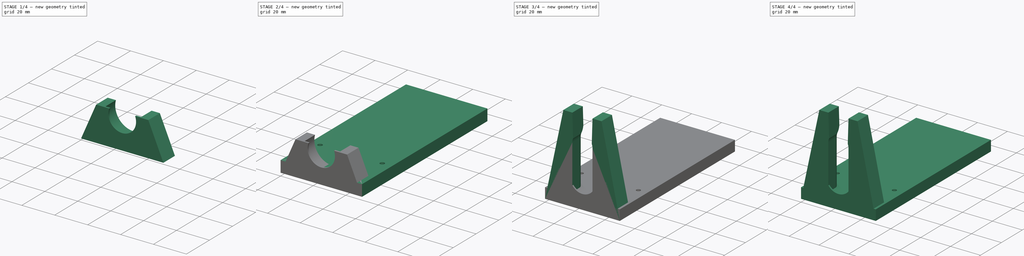
[diagram: build sequence overview — one tinted view per stage of 4, left to right]
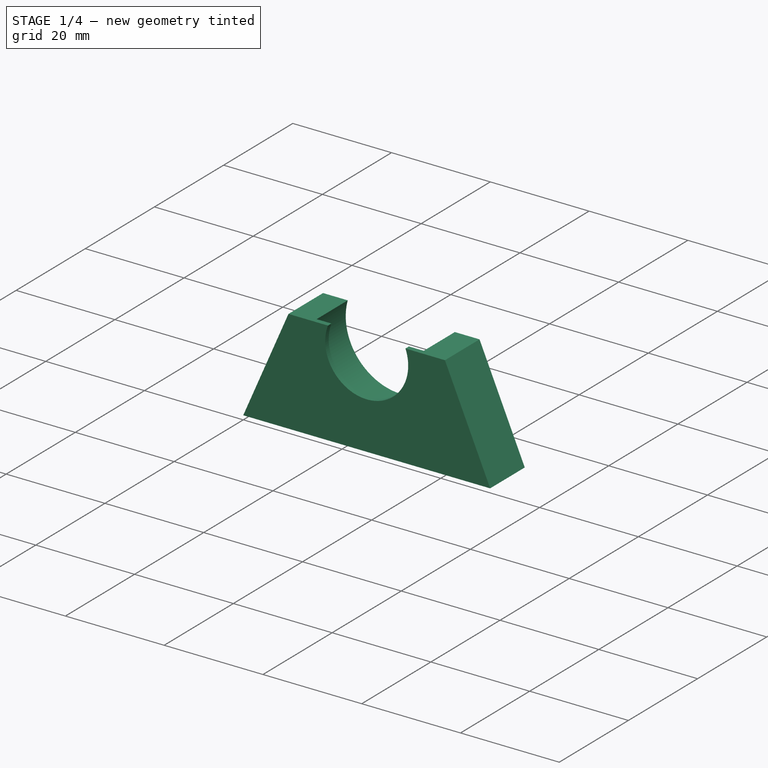
[diagram: stage 1 of 4 — iso view after this stage's code; geometry added in this stage tinted green]
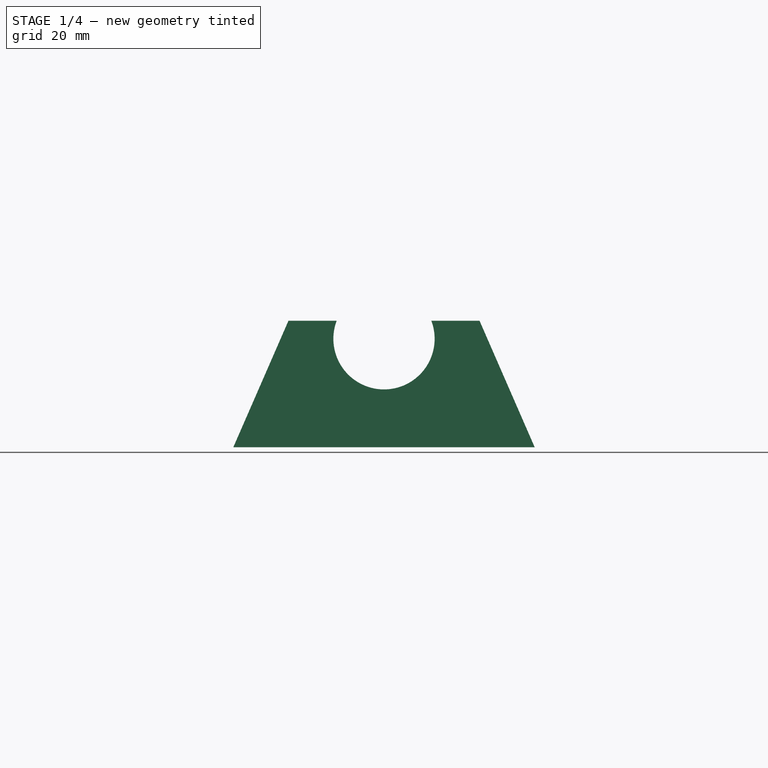
[diagram: stage 1 of 4 — front view after this stage's code; geometry added in this stage tinted green]
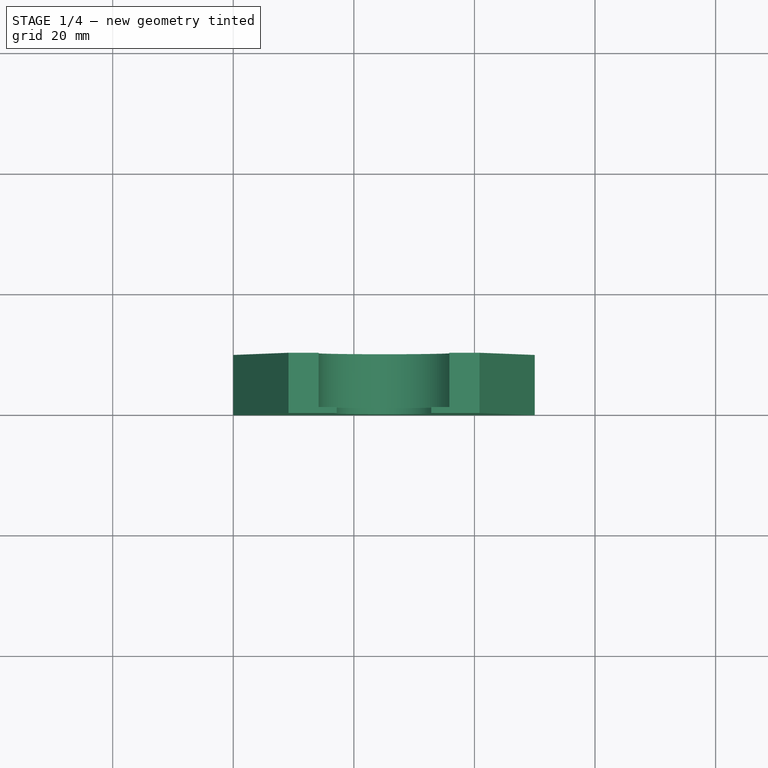
[diagram: stage 1 of 4 — top view after this stage's code; geometry added in this stage tinted green]
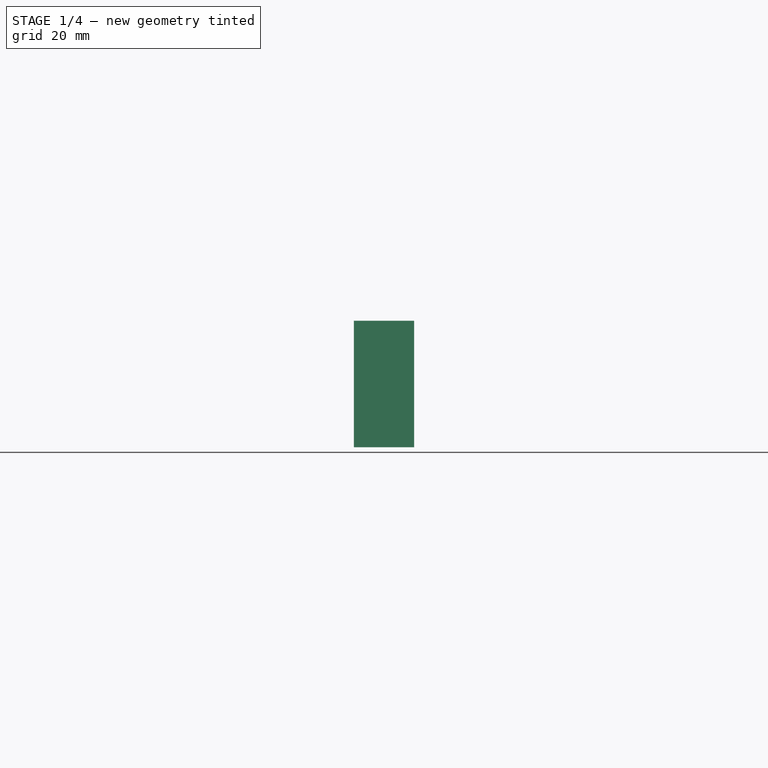
[diagram: stage 1 of 4 — right view after this stage's code; geometry added in this stage tinted green]
FCSTD DOCUMENT  (FreeCAD 0.19R23463 (Git))
Label: adaptador_gilson_v0.2
License: All rights reserved
LicenseURL: http://en.wikipedia.org/wiki/All_rights_reserved
objects: Sketcher::SketchObject×9, PartDesign::Pad×7, PartDesign::Body×4, PartDesign::Fillet×1, Spreadsheet::Sheet×1, PartDesign::Pocket×1
note: 31 computed .brp shape members not serialized (recipe doc carries the construction recipe); baked Part::Feature solids carry a one-line shape summary decoded from their .brp

FEATURE [Sketcher::SketchObject] Sketch001
  MapMode = 5
  Placement = pos=(0,0,0) rot=(1,0,0;1.5708rad)
  Support = -> [XZ_Plane001]
  expr: Constraints[0] = Spreadsheet.B2
  expr: Constraints[13] = Spreadsheet.D3
  expr: Constraints[15] = Spreadsheet.B8 / 2
  expr: Constraints[14] = Spreadsheet.B10
  expr: Constraints[17] = Spreadsheet.B8
  sketch-geometry (6):
    g0: ArcOfCircle CenterX=25 CenterY=18 CenterZ=0 NormalX=0 NormalY=0 NormalZ=1 AngleXU=0 Radius=8.4 StartAngle=2.77639 EndAngle=6.64839
    g1: LineSegment StartX=17.154 StartY=21 StartZ=0 EndX=13.154 EndY=21 EndZ=0
    g2: LineSegment StartX=13.154 StartY=21 StartZ=0 EndX=0 EndY=0 EndZ=0
    g3: LineSegment StartX=0 StartY=0 StartZ=0 EndX=50 EndY=0 EndZ=0
    g4: LineSegment StartX=50 StartY=0 StartZ=0 EndX=36.846 EndY=21 EndZ=0
    g5: LineSegment StartX=36.846 StartY=21 StartZ=0 EndX=32.846 EndY=21 EndZ=0
  constraints (18):
    c: Diameter(g0) = 16.8
    c: Coincident(g0,g1)
    c: Coincident(g1,g2)
    c: Coincident(g2,g3)
    c: PointOnObject(g3,g-1)
    c: Coincident(g3,g4)
    c: Coincident(g4,g5)
    c: Coincident(g5,g0)
    c: Horizontal(g5)
    c: Horizontal(g1)
    c: Equal(g1,g5)
    c: Coincident(g2,g-1)
    c: Equal(g2,g4)
    c: DistanceY(g0,g0) = 3
    c: DistanceY(g3,g0) = 18
    c: DistanceX(g2,g0) = 25
    c: DistanceX(g5,g5) = 4
    c: DistanceX(g2,g3) = 50
FEATURE [PartDesign::Pad] Pad001
  AllowMultiFace = false
  Direction = (1,1,1)
  Length = 1
  Length2 = 100
  Placement = pos=(0,0,0) rot=(1,0,0;1.5708rad)
  Profile = -> Sketch001
  Reversed = true
  Type = 0
FEATURE [PartDesign::Body] Body006  label="Body_base_v2_holes"
  Group = -> [Sketch010,Pad011]
  Origin = -> Origin006
  Tip = -> Pad011
FEATURE [Spreadsheet::Sheet] Spreadsheet
  cells = A2=diametro chico; B2==16.8mm; A3=profundidad hendidura para calzar; B3==2mm + B2 / 2; C3=profundidad extra; D3=3; A5=diametro grande; B5==22mm; A6=tol; B6==B5 + 0.5mm; A8=ancho base; B8==50mm; A10=distancia centro-base; B10==18mm
FEATURE [Sketcher::SketchObject] Sketch011
  MapMode = 5
  Placement = pos=(0,0,0) rot=(1,0,0;1.5708rad)
  Support = -> [XZ_Plane001]
  expr: Constraints[0] = Spreadsheet.B6
  expr: Constraints[13] = Spreadsheet.B8
  expr: Constraints[20] = Spreadsheet.B8 / 2
  expr: Constraints[19] = Spreadsheet.B10
  expr: .Constraints.extra_para_agarrar = Spreadsheet.D3
  sketch-geometry (8):
    g0: ArcOfCircle CenterX=25 CenterY=18 CenterZ=0 NormalX=0 NormalY=0 NormalZ=1 AngleXU=0 Radius=11.25 StartAngle=2.87166 EndAngle=6.55312
    g1: LineSegment StartX=14.1574 StartY=21 StartZ=0 EndX=9.15738 EndY=21 EndZ=0
    g2: LineSegment StartX=9.15738 StartY=21 StartZ=0 EndX=0 EndY=0 EndZ=0
    g3: LineSegment StartX=0 StartY=0 StartZ=0 EndX=50 EndY=0 EndZ=0
    g4: LineSegment StartX=50 StartY=0 StartZ=0 EndX=40.8426 EndY=21 EndZ=0
    g5: LineSegment StartX=40.8426 StartY=21 StartZ=0 EndX=35.8426 EndY=21 EndZ=0
    g6: LineSegment StartX=0 StartY=0 StartZ=0 EndX=50 EndY=0 EndZ=0
    g7: GeomPoint X=25 Y=0 Z=0
  constraints (21):
    c: Diameter(g0) = 22.5
    c: Coincident(g0,g1)
    c: Coincident(g1,g2)
    c: Coincident(g2,g3)
    c: PointOnObject(g3,g-1)
    c: Coincident(g3,g4)
    c: Coincident(g4,g5)
    c: Coincident(g5,g0)
    c: Horizontal(g5)
    c: Horizontal(g1)
    c: Equal(g1,g5)
    c: DistanceX(g5,g5) = 5
    c: Coincident(g6,g-1)
    c: DistanceX(g6,g6) = 50
    c: Symmetric(g-1,g6,g7)
    c: Symmetric(g2,g3,g7)
    c: Coincident(g2,g-1)
    c: Equal(g2,g4)
    c: DistanceY(g0,g0) = 3  'extra_para_agarrar'
    c: DistanceY(g7,g0) = 18
    c: DistanceX(g2,g0) = 25
FEATURE [PartDesign::Pad] Pad012
  AllowMultiFace = false
  BaseFeature = -> Pad001
  Direction = (1,1,1)
  Length = 10
  Length2 = 100
  Placement = pos=(0,0,0) rot=(1,0,0;1.5708rad)
  Profile = -> Sketch011
  Reversed = true
  Type = 0
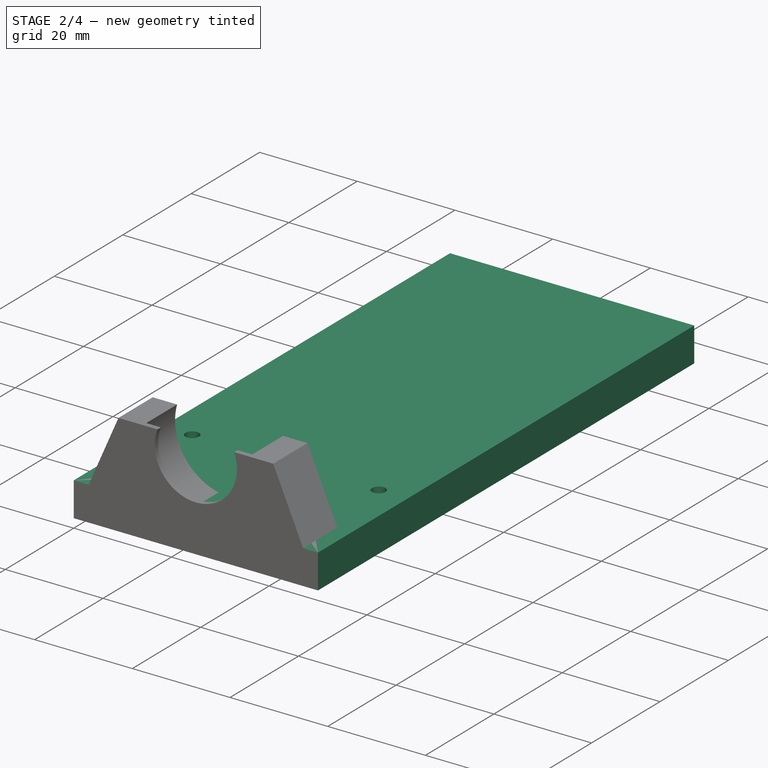
[diagram: stage 2 of 4 — iso view after this stage's code; geometry added in this stage tinted green]
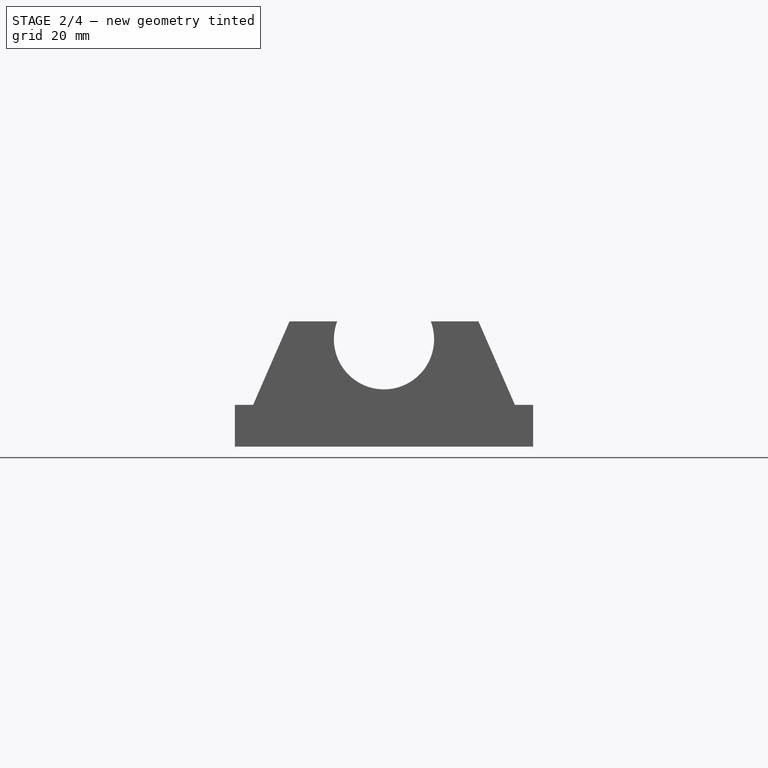
[diagram: stage 2 of 4 — front view after this stage's code; geometry added in this stage tinted green]
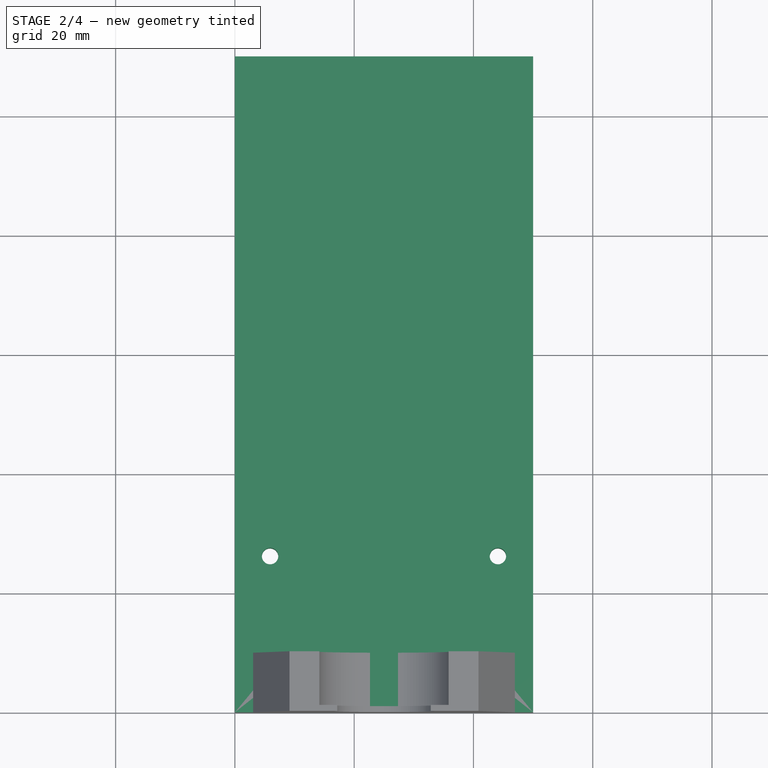
[diagram: stage 2 of 4 — top view after this stage's code; geometry added in this stage tinted green]
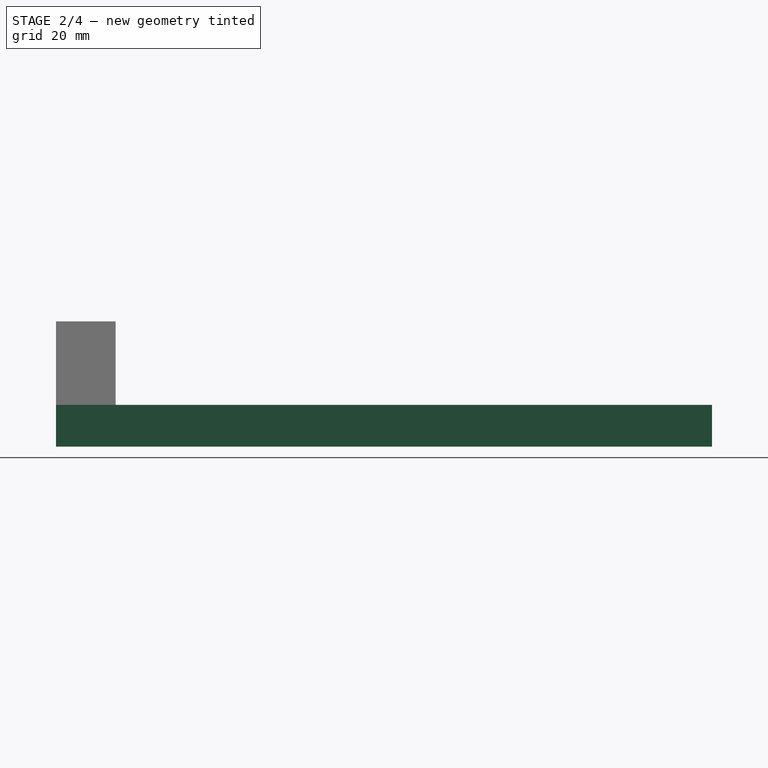
[diagram: stage 2 of 4 — right view after this stage's code; geometry added in this stage tinted green]
FEATURE [PartDesign::Body] Body005  label="base_gilson_top"
  Group = -> [Sketch006,Pad006,Fillet001,Sketch009,Pad010]
  Origin = -> Origin005
  Tip = -> Pad010
FEATURE [Sketcher::SketchObject] Sketch010
  MapMode = 5
  Support = -> [XY_Plane006]
  sketch-geometry (35):
    g0: LineSegment StartX=255.455 StartY=130.752 StartZ=0 EndX=305.455 EndY=130.752 EndZ=0
    g1: LineSegment StartX=305.455 StartY=130.752 StartZ=0 EndX=305.455 EndY=99.5515 EndZ=0
    g2: LineSegment StartX=305.455 StartY=99.5515 StartZ=0 EndX=255.455 EndY=99.5515 EndZ=0
    g3: LineSegment StartX=255.455 StartY=99.5515 StartZ=0 EndX=255.455 EndY=130.752 EndZ=0
    g4: Circle CenterX=299.555 CenterY=104.552 CenterZ=0 NormalX=0 NormalY=0 NormalZ=1 AngleXU=0 Radius=1.375
    g5: Circle CenterX=261.355 CenterY=104.552 CenterZ=0 NormalX=0 NormalY=0 NormalZ=1 AngleXU=0 Radius=1.375
    g6: Circle CenterX=261.355 CenterY=125.752 CenterZ=0 NormalX=0 NormalY=0 NormalZ=1 AngleXU=0 Radius=1.375
    g7: Circle CenterX=299.555 CenterY=125.752 CenterZ=0 NormalX=0 NormalY=0 NormalZ=1 AngleXU=0 Radius=1.375
    g8: LineSegment StartX=261.355 StartY=125.752 StartZ=0 EndX=299.555 EndY=125.752 EndZ=0
    g9: LineSegment StartX=299.555 StartY=125.752 StartZ=0 EndX=299.555 EndY=104.552 EndZ=0
    g10: LineSegment StartX=299.555 StartY=104.552 StartZ=0 EndX=261.355 EndY=104.552 EndZ=0
    g11: LineSegment StartX=261.355 StartY=104.552 StartZ=0 EndX=261.355 EndY=125.752 EndZ=0
    g12: LineSegment StartX=255.455 StartY=99.5515 StartZ=0 EndX=299.555 EndY=104.552 EndZ=0
    g13: LineSegment StartX=305.455 StartY=99.5515 StartZ=0 EndX=261.355 EndY=104.552 EndZ=0
    g14: LineSegment StartX=93.0794 StartY=104.5 StartZ=0 EndX=97.1711 EndY=52 EndZ=0
    g15: LineSegment StartX=97.1711 StartY=52 StartZ=0 EndX=101.263 EndY=104.5 EndZ=0
    g16: LineSegment StartX=101.263 StartY=104.5 StartZ=0 EndX=93.0794 EndY=104.5 EndZ=0
    g17: LineSegment StartX=228.766 StartY=219.5 StartZ=0 EndX=190.566 EndY=219.5 EndZ=0
    g18: LineSegment StartX=190.566 StartY=219.5 StartZ=0 EndX=190.566 EndY=294.5 EndZ=0
    g19: LineSegment StartX=190.566 StartY=294.5 StartZ=0 EndX=228.766 EndY=294.5 EndZ=0
    g20: LineSegment StartX=228.766 StartY=294.5 StartZ=0 EndX=228.766 EndY=219.5 EndZ=0
    g21: LineSegment StartX=207.166 StartY=99.5 StartZ=0 EndX=212.166 EndY=99.5 EndZ=0
    g22: LineSegment StartX=212.166 StartY=99.5 StartZ=0 EndX=212.166 EndY=219.5 EndZ=0
    g23: LineSegment StartX=212.166 StartY=219.5 StartZ=0 EndX=207.166 EndY=219.5 EndZ=0
    g24: LineSegment StartX=207.166 StartY=219.5 StartZ=0 EndX=207.166 EndY=99.5 EndZ=0
    g25: LineSegment StartX=190.566 StartY=219.5 StartZ=0 EndX=207.166 EndY=99.5 EndZ=0
    g26: LineSegment StartX=212.166 StartY=99.5 StartZ=0 EndX=228.766 EndY=219.5 EndZ=0
    g27: LineSegment StartX=72.3393 StartY=42 StartZ=0 EndX=77.3393 EndY=2 EndZ=0
    g28: LineSegment StartX=77.3393 StartY=2 StartZ=0 EndX=82.3393 EndY=42 EndZ=0
    g29: LineSegment StartX=82.3393 StartY=42 StartZ=0 EndX=72.3393 EndY=42 EndZ=0
    g30: LineSegment StartX=325.681 StartY=75 StartZ=0 EndX=195.364 EndY=75 EndZ=0
    g31: LineSegment StartX=195.364 StartY=75 StartZ=0 EndX=195.364 EndY=153.36 EndZ=0
    g32: LineSegment StartX=195.364 StartY=153.36 StartZ=0 EndX=325.681 EndY=153.36 EndZ=0
    g33: LineSegment StartX=325.681 StartY=153.36 StartZ=0 EndX=325.681 EndY=75 EndZ=0
    g34: GeomPoint X=0 Y=0 Z=0
  constraints (86):
    c: Coincident(g0,g1)
    c: Coincident(g1,g2)
    c: Coincident(g3,g0)
    c: Horizontal(g0)
    c: Horizontal(g2)
    c: Vertical(g1)
    c: Vertical(g3)
    c: DistanceX(g0,g0) = 50
    c: Equal(g6,g5)
    c: Equal(g5,g4)
    c: Equal(g4,g7)
    c: DistanceX(g6,g7) = 38.2
    c: DistanceY(g5,g6) = 21.2
    c: Coincident(g8,g9)
    c: Coincident(g9,g10)
    c: Coincident(g10,g11)
    c: Coincident(g11,g8)
    c: Horizontal(g8)
    c: Horizontal(g10)
    c: Vertical(g9)
    c: Vertical(g11)
    c: Coincident(g8,g6)
    c: Coincident(g9,g4)
    c: Coincident(g5,g10)
    c: Coincident(g7,g8)
    c: DistanceY(g2,g5) = 5
    c: Coincident(g12,g2)
    c: Coincident(g12,g4)
    c: Coincident(g13,g1)
    c: Coincident(g13,g5)
    c: Equal(g12,g13)
    c: Diameter(g7) = 2.75
    c: Coincident(g14,g15)
    c: Coincident(g15,g16)
    c: Coincident(g16,g14)
    c: Horizontal(g16)
    c: DistanceY(g14,g15) = 52.5
    c: Equal(g14,g15)
    c: Coincident(g17,g18)
    c: Coincident(g18,g19)
    c: Coincident(g19,g20)
    c: Coincident(g20,g17)
    c: Horizontal(g17)
    c: Horizontal(g19)
    c: Vertical(g18)
    c: Vertical(g20)
    c: DistanceX(g19,g19) = 38.2
    c: Coincident(g21,g22)
    c: Coincident(g22,g23)
    c: Coincident(g23,g24)
    c: Coincident(g24,g21)
    c: Horizontal(g21)
    c: Horizontal(g23)
    c: Vertical(g22)
    c: Vertical(g24)
    c: PointOnObject(g22,g17)
    c: Coincident(g25,g17)
    c: Coincident(g25,g21)
    c: Coincident(g26,g21)
    c: Coincident(g26,g17)
    c: Equal(g26,g25)
    c: DistanceY(g22,g22) = 120
    c: DistanceX(g21,g21) = 5
    c: DistanceY(g21,g15) = 5
    c: Coincident(g27,g28)
    c: Coincident(g28,g29)
    c: Coincident(g29,g27)
    c: Horizontal(g29)
    c: DistanceY(g27,g28) = 40
    c: Equal(g27,g28)
    c: DistanceY(g34,g27) = 2
    c: DistanceX(g29,g29) = 10
    c: DistanceY(g28,g14) = 10
    c: Coincident(g3,g2)
    c: DistanceY(g6,g0) = 5
    c: Coincident(g30,g31)
    c: Coincident(g31,g32)
    c: Coincident(g32,g33)
    c: Coincident(g33,g30)
    c: Horizontal(g30)
    c: Horizontal(g32)
    c: Vertical(g31)
    c: Vertical(g33)
    c: DistanceY(g34,g30) = 75
    c: DistanceY(g20,g20) = 75
    c: Coincident(g34,g-1)
FEATURE [PartDesign::Pad] Pad011
  AllowMultiFace = false
  Direction = (1,1,1)
  Length = 7
  Length2 = 100
  Profile = -> Sketch010
  Type = 0
FEATURE [Sketcher::SketchObject] Sketch012
  MapMode = 5
  Support = -> [XY_Plane001]
  expr: Constraints[0] = Spreadsheet.B8 / 2
  sketch-geometry (1):
    g0: Circle CenterX=25 CenterY=5 CenterZ=0 NormalX=0 NormalY=0 NormalZ=1 AngleXU=0 Radius=1.475
  constraints (3):
    c: DistanceX(g-1,g0) = 25
    c: DistanceY(g-1,g0) = 5
    c: Diameter(g0) = 2.95
FEATURE [PartDesign::Pocket] Pocket
  AllowMultiFace = false
  BaseFeature = -> Pad012
  Length = 50
  Length2 = 100
  Placement = pos=(0,0,0) rot=(1,0,0;1.5708rad)
  Profile = -> Sketch012
  Reversed = true
  Type = 0
FEATURE [PartDesign::Body] Body001  label="base_gilson_inferior"
  Group = -> [Sketch001,Pad001,Sketch007,Sketch011,Pad012,Sketch012,Pocket]
  Origin = -> Origin001
  Tip = -> Pocket
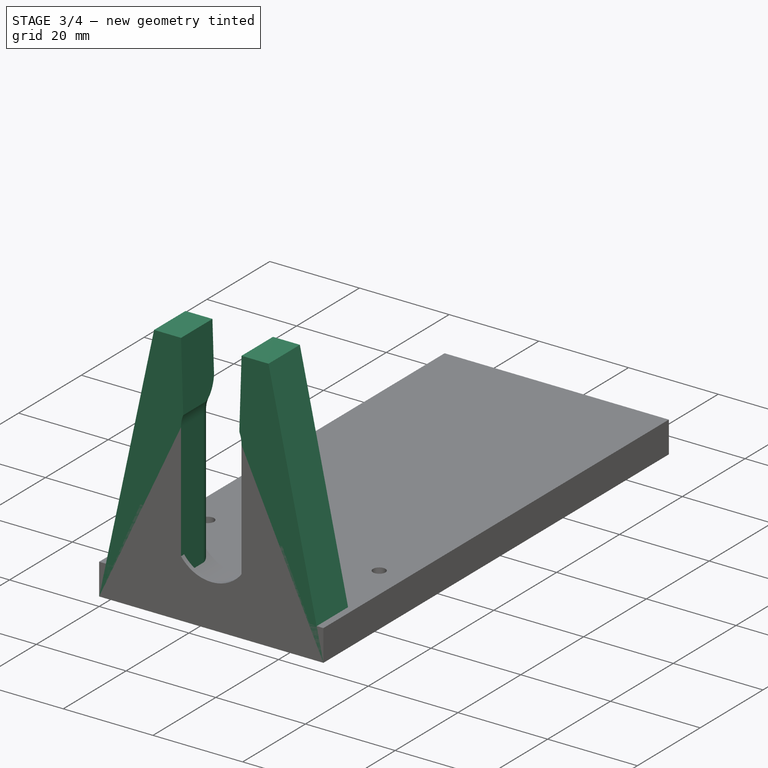
[diagram: stage 3 of 4 — iso view after this stage's code; geometry added in this stage tinted green]
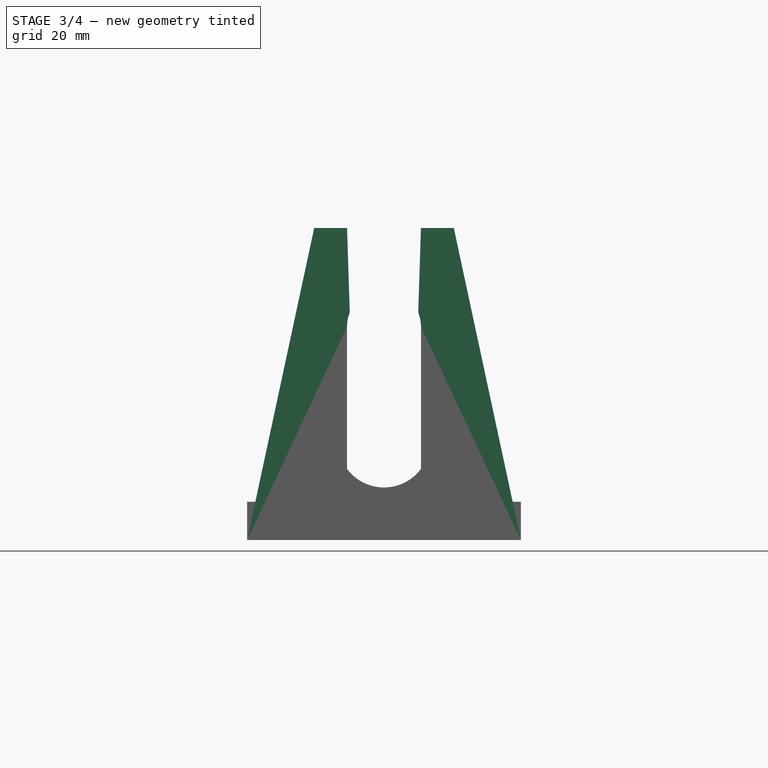
[diagram: stage 3 of 4 — front view after this stage's code; geometry added in this stage tinted green]
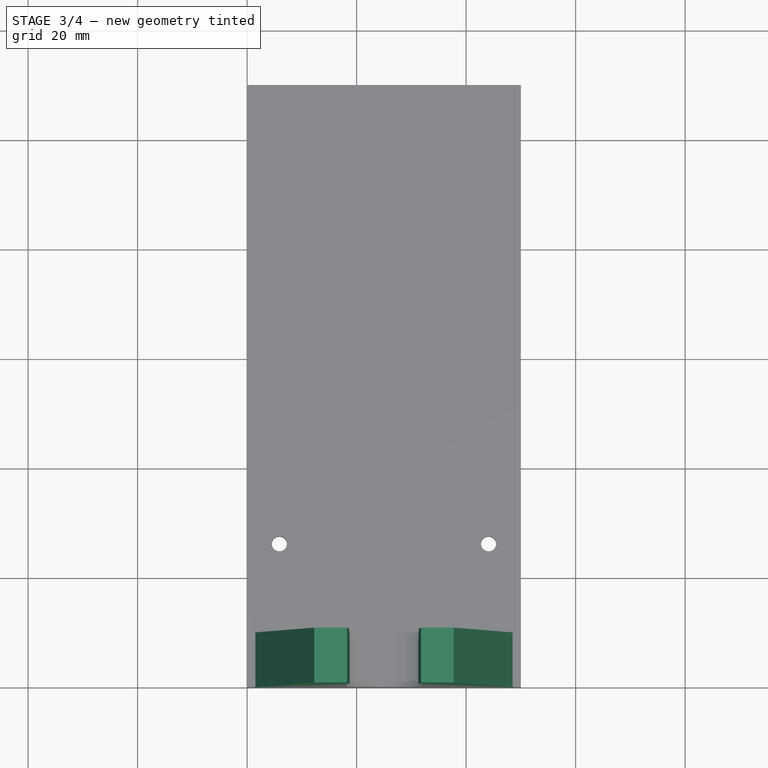
[diagram: stage 3 of 4 — top view after this stage's code; geometry added in this stage tinted green]
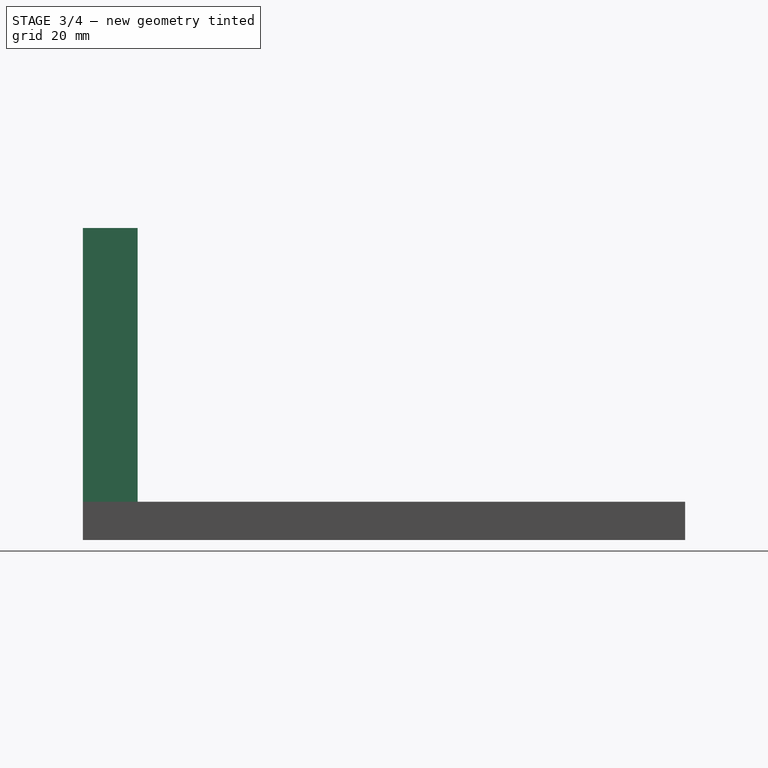
[diagram: stage 3 of 4 — right view after this stage's code; geometry added in this stage tinted green]
FEATURE [PartDesign::Body] Body  label="Body_base"
  Group = -> [Sketch,Pad,Sketch005,Pad005]
  Origin = -> Origin
  Tip = -> Pad005
FEATURE [Sketcher::SketchObject] Sketch006
  MapMode = 5
  Placement = pos=(0,0,0) rot=(1,0,0;1.5708rad)
  Support = -> [XZ_Plane005]
  expr: Constraints[18] = 13.4 + 0.1
  expr: Constraints[19] = 10 + 40
  sketch-geometry (27):
    g0: LineSegment StartX=18.25 StartY=57 StartZ=0 EndX=12.25 EndY=57 EndZ=0
    g1: LineSegment StartX=12.25 StartY=57 StartZ=0 EndX=0 EndY=0 EndZ=0
    g2: LineSegment StartX=0 StartY=0 StartZ=0 EndX=50 EndY=0 EndZ=0
    g3: LineSegment StartX=50 StartY=0 StartZ=0 EndX=37.75 EndY=57 EndZ=0
    g4: LineSegment StartX=37.75 StartY=57 StartZ=0 EndX=31.75 EndY=57 EndZ=0
    g5: LineSegment StartX=0 StartY=0 StartZ=0 EndX=50 EndY=0 EndZ=0
    g6: GeomPoint X=25 Y=0 Z=0
    g7: LineSegment StartX=18.25 StartY=7 StartZ=0 EndX=31.75 EndY=7 EndZ=0
    g8: GeomPoint X=18.25 Y=39 Z=0
    g9: LineSegment StartX=18.25 StartY=7 StartZ=0 EndX=18.25 EndY=39 EndZ=0
    g10: LineSegment StartX=18.25 StartY=57 StartZ=0 EndX=18.25 EndY=39 EndZ=0
    g11: ArcOfCircle CenterX=25 CenterY=39 CenterZ=0 NormalX=0 NormalY=0 NormalZ=1 AngleXU=0 Radius=6.75 StartAngle=2.75428 EndAngle=3.14159
    g12: ArcOfCircle CenterX=25 CenterY=39 CenterZ=0 NormalX=0 NormalY=0 NormalZ=1 AngleXU=0 Radius=6.75 StartAngle=7e-16 EndAngle=0.387317
    g13: LineSegment StartX=18.25 StartY=39 StartZ=0 EndX=31.75 EndY=39 EndZ=0
    g14: LineSegment StartX=18.75 StartY=41.5495 StartZ=0 EndX=18.25 EndY=57 EndZ=0
    g15: LineSegment StartX=31.25 StartY=41.5495 StartZ=0 EndX=31.75 EndY=57 EndZ=0
    g16: LineSegment StartX=31.75 StartY=7 StartZ=0 EndX=31.75 EndY=39 EndZ=0
    g17: LineSegment StartX=31.75 StartY=39 StartZ=0 EndX=31.75 EndY=57 EndZ=0
    g18: LineSegment StartX=18.2499 StartY=8.5 StartZ=0 EndX=31.7499 EndY=8.5 EndZ=0
    g19: GeomPoint X=25 Y=7 Z=0
    g20: ArcOfCircle CenterX=24.9999 CenterY=22.9375 CenterZ=0 NormalX=0 NormalY=0 NormalZ=1 AngleXU=0 Radius=15.9375 StartAngle=4.27505 EndAngle=5.14973
    g21: LineSegment StartX=18.2499 StartY=7 StartZ=0 EndX=31.7499 EndY=7 EndZ=0
    g22: GeomPoint X=24.9999 Y=8.5 Z=0
    g23: LineSegment StartX=18.2499 StartY=8.5 StartZ=0 EndX=18.2499 EndY=7 EndZ=0
    g24: GeomPoint X=25 Y=7 Z=0
    g25: LineSegment StartX=18.25 StartY=39 StartZ=0 EndX=18.2499 EndY=8.5 EndZ=0
    g26: LineSegment StartX=31.7499 StartY=8.5 StartZ=0 EndX=31.75 EndY=39 EndZ=0
  constraints (65):
    c: DistanceY(g0,g4) = 0
    c: Coincident(g0,g1)
    c: Coincident(g1,g2)
    c: PointOnObject(g2,g-1)
    c: Coincident(g2,g3)
    c: Coincident(g3,g4)
    c: Horizontal(g4)
    c: Horizontal(g0)
    c: Equal(g0,g4)
    c: DistanceX(g4,g4) = 6
    c: Coincident(g5,g-1)
    c: DistanceX(g5,g5) = 50
    c: Symmetric(g-1,g5,g6)
    c: Symmetric(g1,g2,g6)
    c: Coincident(g1,g-1)
    c: Equal(g1,g3)
    c: Horizontal(g7)
    c: DistanceY(g2,g7) = 7
    c: DistanceX(g7,g7) = 13.5
    c: DistanceY(g7,g4) = 50
    c: DistanceY(g7,g8) = 32
    c: Coincident(g9,g7)
    c: Coincident(g9,g8)
    c: Vertical(g9)
    c: Coincident(g10,g0)
    c: Coincident(g10,g8)
    c: Vertical(g10)
    c: Coincident(g11,g8)
    c: DistanceX(g8,g11) = 0.5
    c: Coincident(g12,g11)
    c: DistanceX(g12,g12) = 0.5
    c: Symmetric(g8,g12,g11)
    c: Coincident(g13,g8)
    c: Horizontal(g13)
    c: Coincident(g12,g13)
    c: Coincident(g14,g11)
    c: Coincident(g14,g0)
    c: Coincident(g15,g12)
    c: Coincident(g15,g4)
    c: Coincident(g16,g7)
    c: Coincident(g16,g12)
    c: Vertical(g16)
    c: Coincident(g17,g12)
    c: Coincident(g17,g4)
    c: Vertical(g17)
    c: Horizontal(g18)
    c: DistanceX(g18,g18) = 13.5
    c: Symmetric(g7,g7,g19)
    c: Coincident(g20,g18)
    c: Coincident(g20,g18)
    c: Horizontal(g21)
    c: Equal(g21,g18)
    c: Tangent(g21,g20)
    c: Symmetric(g20,g20,g22)
    c: DistanceY(g21,g20) = 1.5
    c: Coincident(g23,g20)
    c: Coincident(g23,g21)
    c: Vertical(g23)
    c: PointOnObject(g24,g21)
    c: PointOnObject(g24,g20)
    c: Coincident(g24,g19)
    c: Coincident(g25,g8)
    c: Coincident(g25,g20)
    c: Coincident(g26,g20)
    c: Coincident(g26,g12)
FEATURE [PartDesign::Pad] Pad006
  AllowMultiFace = false
  Direction = (1,1,1)
  Length = 10
  Length2 = 100
  Placement = pos=(0,0,0) rot=(1,0,0;1.5708rad)
  Profile = -> Sketch006
  Reversed = true
  Type = 0
FEATURE [PartDesign::Fillet] Fillet001
  Base = -> Pad006 [Edge28,Edge34]
  BaseFeature = -> Pad006
  Placement = pos=(0,0,0) rot=(1,0,0;1.5708rad)
  Radius = 3
  SupportTransform = false
FEATURE [Sketcher::SketchObject] Sketch007
  ExternalGeometry = -> [Sketch001]
  MapMode = 5
  Placement = pos=(0,0,0) rot=(1,0,0;1.5708rad)
  Support = -> [XZ_Plane001]
  sketch-geometry (9):
    g0: LineSegment StartX=11 StartY=-4 StartZ=0 EndX=11 EndY=4.33291 EndZ=0
    g1: LineSegment StartX=11 StartY=4.33291 StartZ=0 EndX=39 EndY=4.33291 EndZ=0
    g2: LineSegment StartX=39 StartY=4.33291 StartZ=0 EndX=39 EndY=-4 EndZ=0
    g3: LineSegment StartX=39 StartY=-4 StartZ=0 EndX=35 EndY=-4 EndZ=0
    g4: LineSegment StartX=35 StartY=-4 StartZ=0 EndX=35 EndY=0 EndZ=0
    g5: LineSegment StartX=35 StartY=0 StartZ=0 EndX=15 EndY=0 EndZ=0
    g6: LineSegment StartX=15 StartY=0 StartZ=0 EndX=15 EndY=-4 EndZ=0
    g7: LineSegment StartX=15 StartY=-4 StartZ=0 EndX=11 EndY=-4 EndZ=0
    g8: GeomPoint X=25 Y=0 Z=0
  constraints (23):
    c: Vertical(g0)
    c: Coincident(g0,g1)
    c: Horizontal(g1)
    c: Coincident(g1,g2)
    c: Vertical(g2)
    c: Coincident(g2,g3)
    c: Horizontal(g3)
    c: Coincident(g3,g4)
    c: Vertical(g4)
    c: Coincident(g4,g5)
    c: Horizontal(g5)
    c: Coincident(g5,g6)
    c: Vertical(g6)
    c: Coincident(g6,g7)
    c: Coincident(g7,g0)
    c: Horizontal(g7)
    c: Equal(g7,g3)
    c: DistanceX(g7,g7) = 4
    c: Symmetric(g-1,g-3,g8)
    c: Symmetric(g4,g5,g8)
    c: DistanceX(g5,g5) = 20
    c: Equal(g7,g6)
    c: Equal(g6,g4)
FEATURE [Sketcher::SketchObject] Sketch009
  ExternalGeometry = -> [Pad006]
  MapMode = 5
  Placement = pos=(0,0,0) rot=(1,0,0;1.5708rad)
  Support = -> [XZ_Plane005]
  sketch-geometry (13):
    g0: LineSegment StartX=11 StartY=6 StartZ=0 EndX=39 EndY=6 EndZ=0
    g1: LineSegment StartX=39 StartY=-4 StartZ=0 EndX=35 EndY=-4 EndZ=0
    g2: LineSegment StartX=35 StartY=-4 StartZ=0 EndX=35 EndY=0 EndZ=0
    g3: LineSegment StartX=35 StartY=0 StartZ=0 EndX=15 EndY=0 EndZ=0
    g4: LineSegment StartX=15 StartY=0 StartZ=0 EndX=15 EndY=-4 EndZ=0
    g5: LineSegment StartX=15 StartY=-4 StartZ=0 EndX=11 EndY=-4 EndZ=0
    g6: GeomPoint X=25 Y=0 Z=0
    g7: LineSegment StartX=11 StartY=0 StartZ=0 EndX=15 EndY=0 EndZ=0
    g8: LineSegment StartX=35 StartY=0 StartZ=0 EndX=39 EndY=0 EndZ=0
    g9: LineSegment StartX=11 StartY=6 StartZ=0 EndX=11 EndY=0 EndZ=0
    g10: LineSegment StartX=11 StartY=0 StartZ=0 EndX=11 EndY=-4 EndZ=0
    g11: LineSegment StartX=39 StartY=6 StartZ=0 EndX=39 EndY=0 EndZ=0
    g12: LineSegment StartX=39 StartY=-4 StartZ=0 EndX=39 EndY=0 EndZ=0
  constraints (34):
    c: Horizontal(g0)
    c: Horizontal(g1)
    c: Coincident(g1,g2)
    c: Vertical(g2)
    c: Coincident(g2,g3)
    c: Horizontal(g3)
    c: Coincident(g3,g4)
    c: Vertical(g4)
    c: Coincident(g4,g5)
    c: Horizontal(g5)
    c: DistanceX(g5,g5) = 4
    c: Equal(g5,g1)
    c: Symmetric(g-3,g-1,g6)
    c: Symmetric(g3,g2,g6)
    c: DistanceX(g3,g3) = 20
    c: Equal(g5,g4)
    c: Equal(g2,g1)
    c: Coincident(g7,g3)
    c: Horizontal(g7)
    c: Coincident(g8,g2)
    c: Horizontal(g8)
    c: DistanceY(g5,g0) = 10
    c: Coincident(g9,g0)
    c: Coincident(g9,g7)
    c: Vertical(g9)
    c: Coincident(g10,g7)
    c: Coincident(g10,g5)
    c: Vertical(g10)
    c: Coincident(g11,g0)
    c: Coincident(g11,g8)
    c: Vertical(g11)
    c: Coincident(g12,g1)
    c: Coincident(g12,g8)
    c: Vertical(g12)
FEATURE [PartDesign::Pad] Pad010
  AllowMultiFace = false
  BaseFeature = -> Fillet001
  Direction = (1,1,1)
  Length = 4
  Length2 = 100
  Placement = pos=(0,0,0) rot=(1,0,0;1.5708rad)
  Profile = -> Sketch009
  Reversed = true
  Type = 0
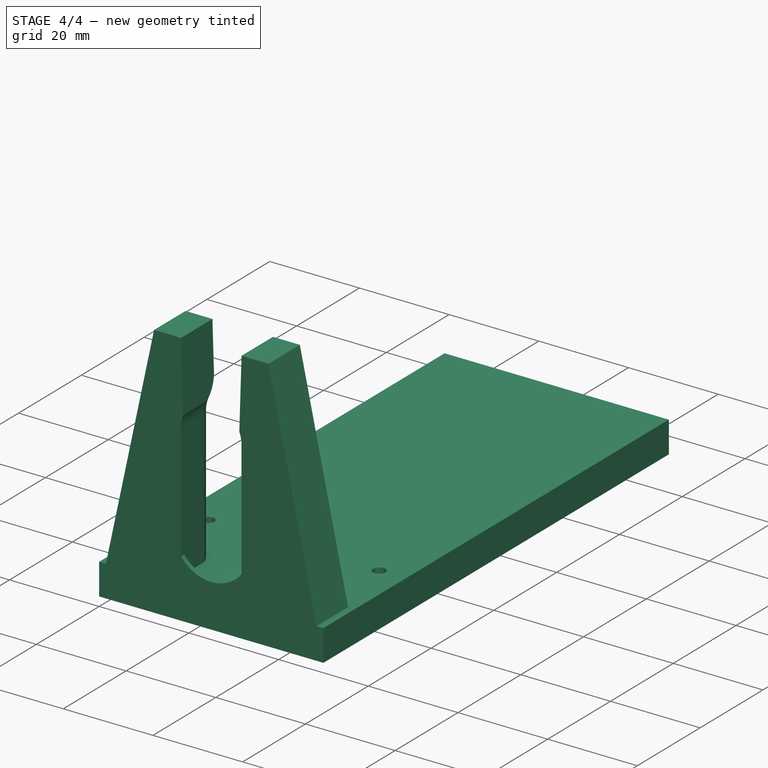
[diagram: stage 4 of 4 — iso view after this stage's code; geometry added in this stage tinted green]
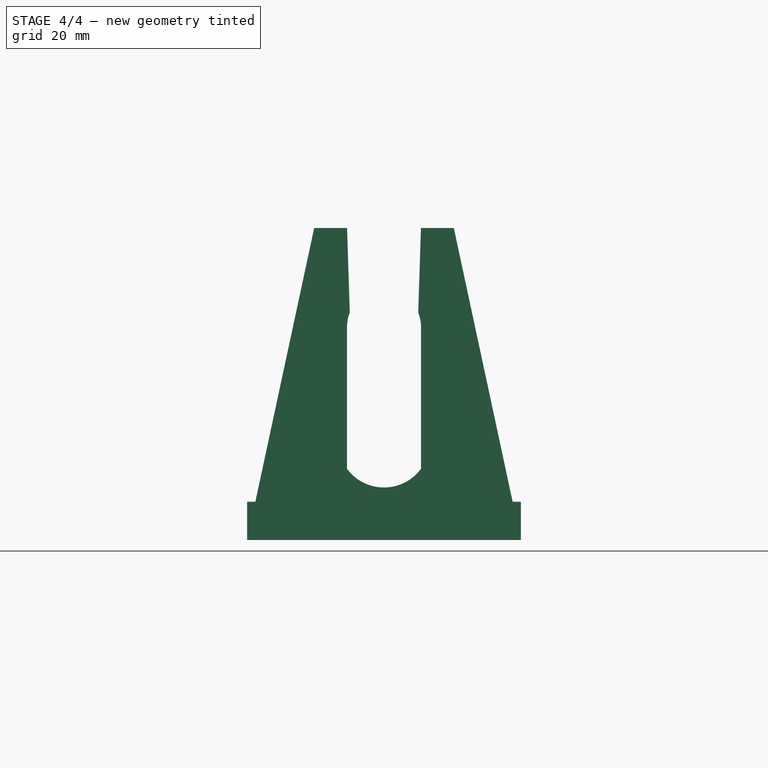
[diagram: stage 4 of 4 — front view after this stage's code; geometry added in this stage tinted green]
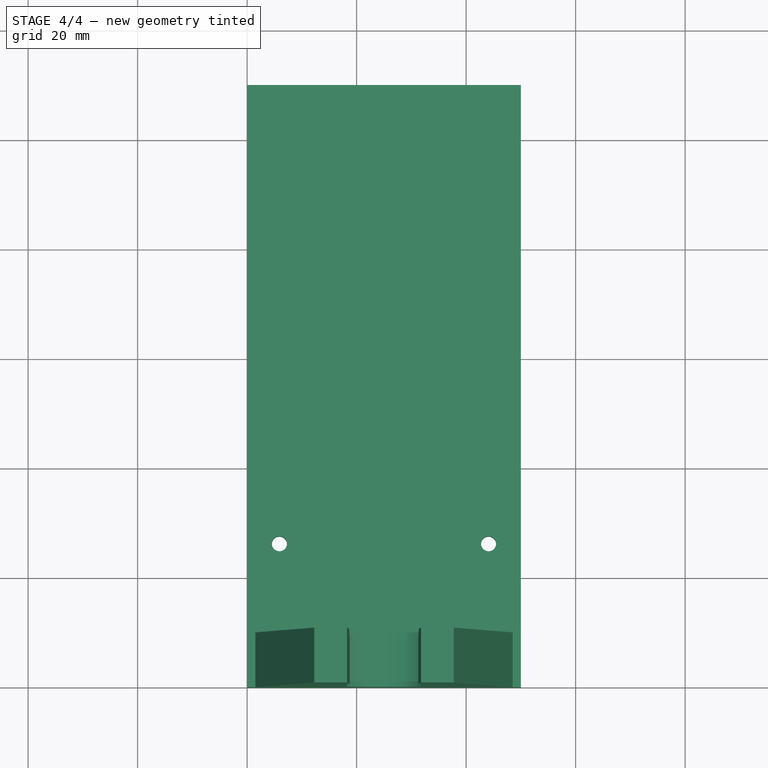
[diagram: stage 4 of 4 — top view after this stage's code; geometry added in this stage tinted green]
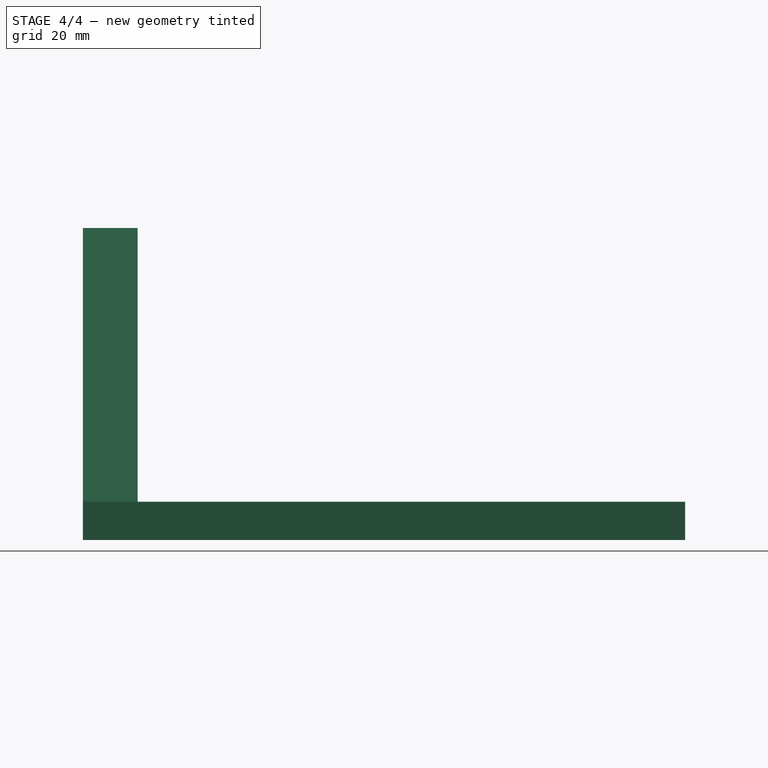
[diagram: stage 4 of 4 — right view after this stage's code; geometry added in this stage tinted green]
FEATURE [Sketcher::SketchObject] Sketch
  MapMode = 5
  Support = -> [XY_Plane]
  expr: Constraints[8] = 80 + 30
  sketch-geometry (14):
    g0: LineSegment StartX=0 StartY=110 StartZ=0 EndX=50 EndY=110 EndZ=0
    g1: LineSegment StartX=50 StartY=110 StartZ=0 EndX=50 EndY=0 EndZ=0
    g2: LineSegment StartX=50 StartY=0 StartZ=0 EndX=0 EndY=0 EndZ=0
    g3: LineSegment StartX=0 StartY=0 StartZ=0 EndX=0 EndY=110 EndZ=0
    g4: Circle CenterX=44.1 CenterY=5 CenterZ=0 NormalX=0 NormalY=0 NormalZ=1 AngleXU=0 Radius=1.375
    g5: Circle CenterX=5.9 CenterY=5 CenterZ=0 NormalX=0 NormalY=0 NormalZ=1 AngleXU=0 Radius=1.375
    g6: Circle CenterX=5.9 CenterY=26.2 CenterZ=0 NormalX=0 NormalY=0 NormalZ=1 AngleXU=0 Radius=1.375
    g7: Circle CenterX=44.1 CenterY=26.2 CenterZ=0 NormalX=0 NormalY=0 NormalZ=1 AngleXU=0 Radius=1.375
    g8: LineSegment StartX=5.9 StartY=26.2 StartZ=0 EndX=44.1 EndY=26.2 EndZ=0
    g9: LineSegment StartX=44.1 StartY=26.2 StartZ=0 EndX=44.1 EndY=5 EndZ=0
    g10: LineSegment StartX=44.1 StartY=5 StartZ=0 EndX=5.9 EndY=5 EndZ=0
    g11: LineSegment StartX=5.9 StartY=5 StartZ=0 EndX=5.9 EndY=26.2 EndZ=0
    g12: LineSegment StartX=0 StartY=0 StartZ=0 EndX=44.1 EndY=5 EndZ=0
    g13: LineSegment StartX=50 StartY=0 StartZ=0 EndX=5.9 EndY=5 EndZ=0
  constraints (35):
    c: Coincident(g0,g1)
    c: Coincident(g1,g2)
    c: Coincident(g2,g3)
    c: Coincident(g3,g0)
    c: Horizontal(g0)
    c: Horizontal(g2)
    c: Vertical(g1)
    c: Vertical(g3)
    c: DistanceY(g1,g1) = 110
    c: DistanceX(g0,g0) = 50
    c: Equal(g6,g5)
    c: Equal(g5,g4)
    c: Equal(g4,g7)
    c: DistanceX(g6,g7) = 38.2
    c: DistanceY(g5,g6) = 21.2
    c: Coincident(g8,g9)
    c: Coincident(g9,g10)
    c: Coincident(g10,g11)
    c: Coincident(g11,g8)
    c: Horizontal(g8)
    c: Horizontal(g10)
    c: Vertical(g9)
    c: Vertical(g11)
    c: Coincident(g8,g6)
    c: Coincident(g9,g4)
    c: Coincident(g5,g10)
    c: Coincident(g7,g8)
    c: Coincident(g2,g-1)
    c: DistanceY(g2,g5) = 5
    c: Coincident(g12,g2)
    c: Coincident(g12,g4)
    c: Coincident(g13,g1)
    c: Coincident(g13,g5)
    c: Equal(g12,g13)
    c: Diameter(g7) = 2.75
FEATURE [PartDesign::Pad] Pad
  AllowMultiFace = false
  Direction = (1,1,1)
  Length = 7
  Length2 = 100
  Profile = -> Sketch
  Type = 0
FEATURE [Sketcher::SketchObject] Sketch005
  ExternalGeometry = -> [Sketch]
  MapMode = 5
  Support = -> [XY_Plane]
  expr: Constraints[8] = 21.2 + 10
  sketch-geometry (4):
    g0: LineSegment StartX=0 StartY=95.6 StartZ=0 EndX=50 EndY=95.6 EndZ=0
    g1: LineSegment StartX=50 StartY=95.6 StartZ=0 EndX=50 EndY=31.2 EndZ=0
    g2: LineSegment StartX=50 StartY=31.2 StartZ=0 EndX=0 EndY=31.2 EndZ=0
    g3: LineSegment StartX=0 StartY=31.2 StartZ=0 EndX=0 EndY=95.6 EndZ=0
  constraints (12):
    c: Coincident(g0,g1)
    c: Coincident(g1,g2)
    c: Coincident(g2,g3)
    c: Coincident(g3,g0)
    c: Horizontal(g0)
    c: Horizontal(g2)
    c: Vertical(g1)
    c: Vertical(g3)
    c: DistanceY(g-1,g2) = 31.2
    c: PointOnObject(g0,g-2)
    c: PointOnObject(g1,g-3)
    c: DistanceY(g3,g3) = 64.4
FEATURE [PartDesign::Pad] Pad005
  AllowMultiFace = false
  BaseFeature = -> Pad
  Direction = (1,1,1)
  Length = 7
  Length2 = 100
  Profile = -> Sketch005
  Type = 0
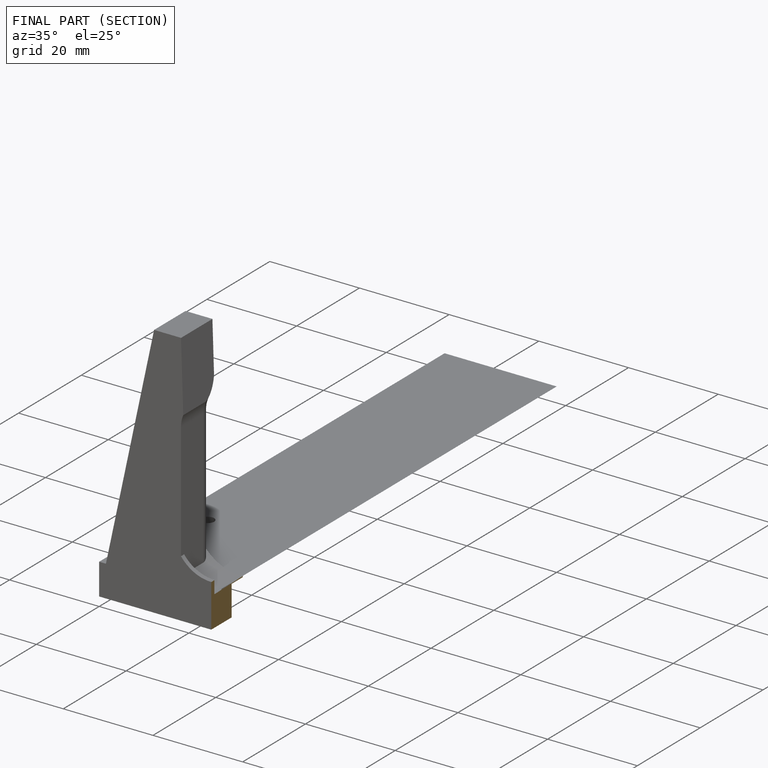
[diagram: finished part — half-section view (interior)]
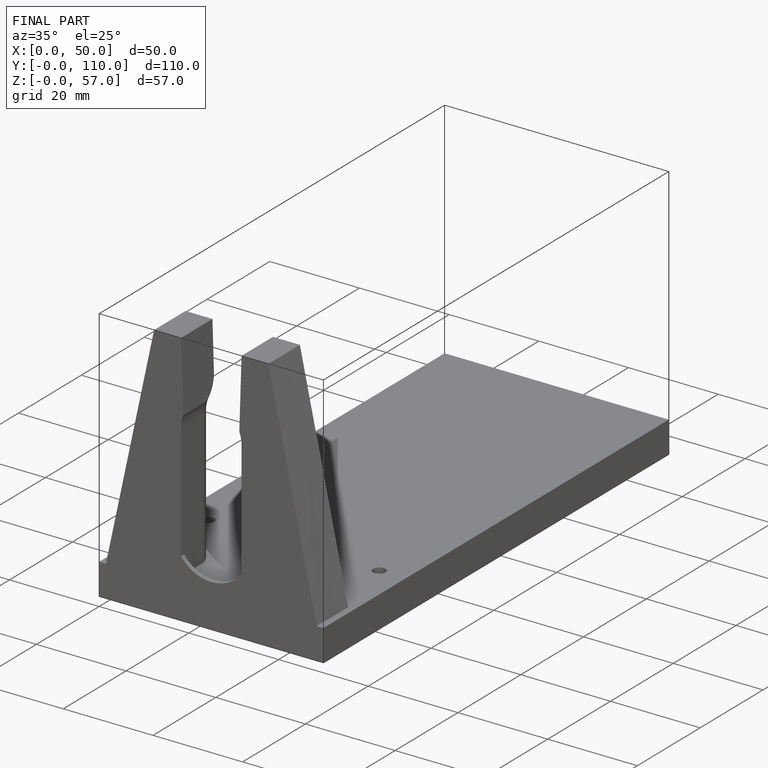
[diagram: finished part — iso view with bounding-box wireframe]
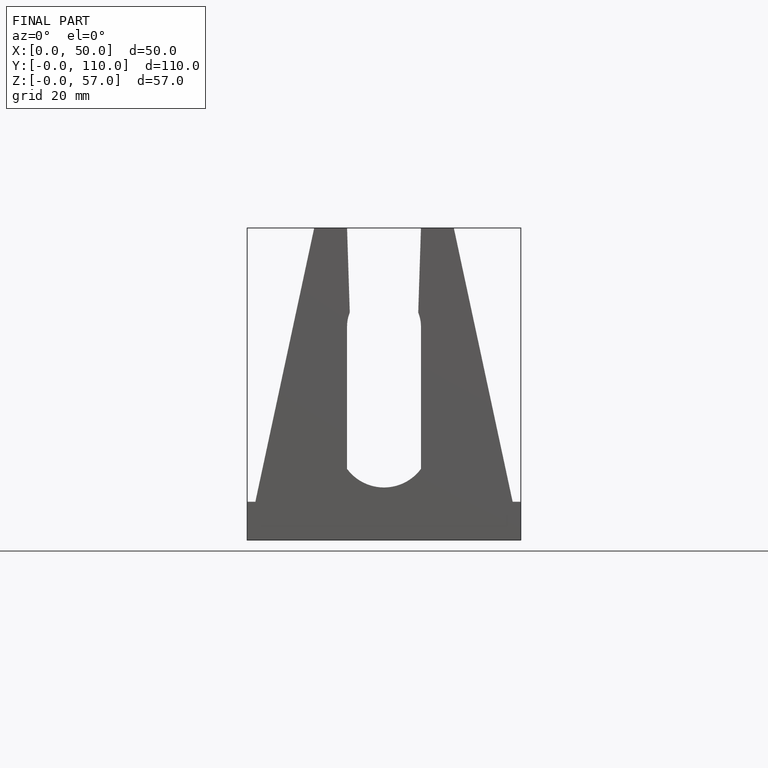
[diagram: finished part — front view with bounding-box wireframe]
